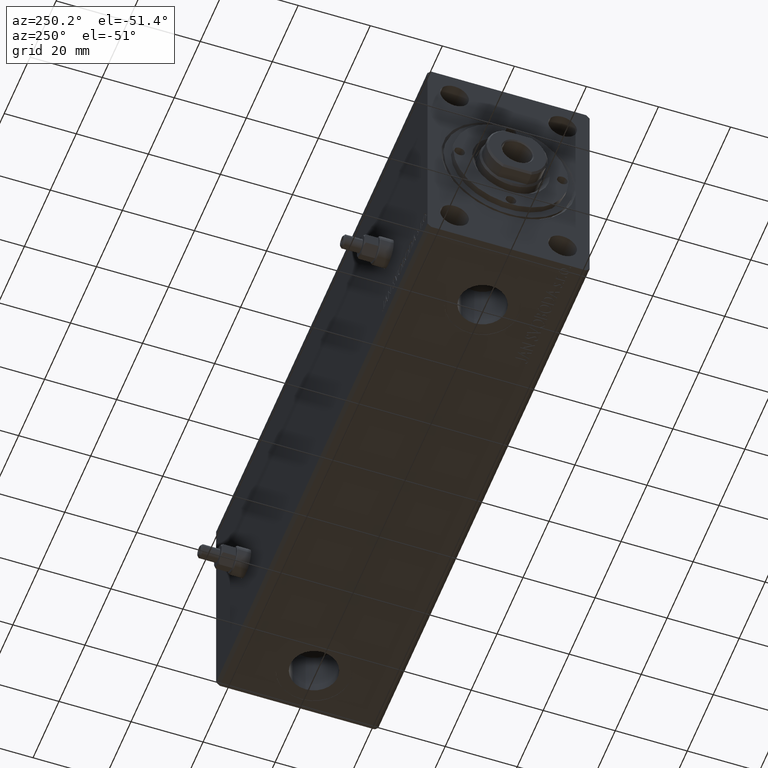
[diagram: clean part render]
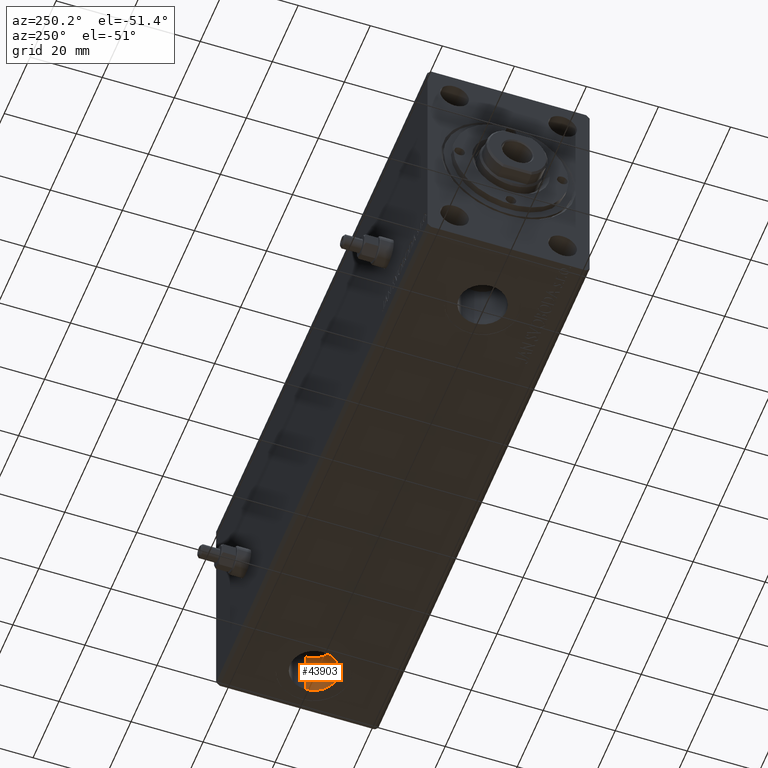
[diagram: same view with one face highlighted and labeled with its STEP entity id]
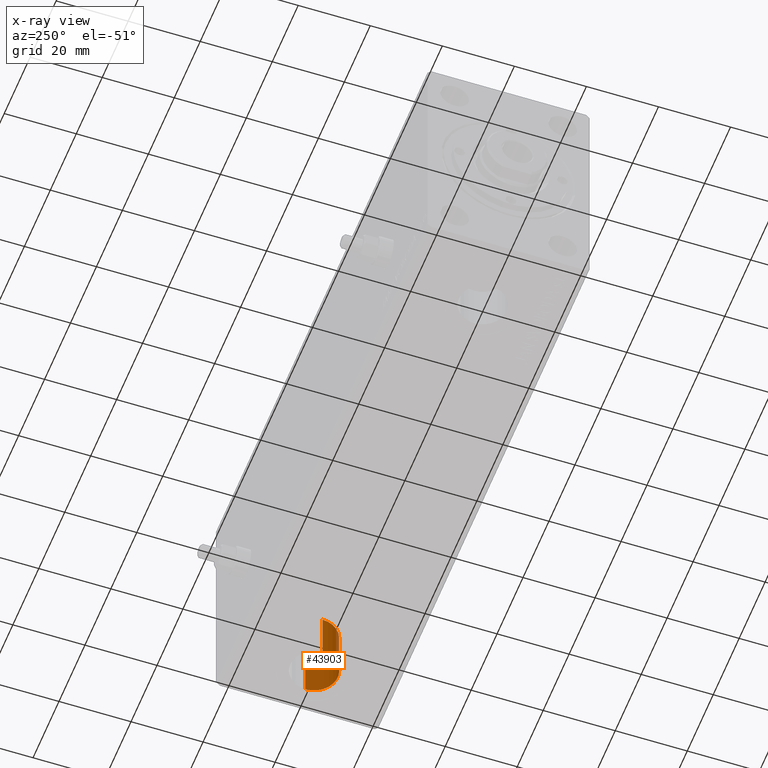
[diagram: x-ray of the same camera — body ghosted, the highlighted face saturated]
A machine part, auxiliary view. The second image highlights one B-rep face of the part: STEP entity #43903.
The next image is the same camera in x-ray: the body ghosted, the highlighted face saturated — about 0% of this face is hidden behind the body in this view.
In plain terms, the highlighted cylindrical surface (edge-blend (fillet) strip) has radius 6.58 mm, axis along (-0, -0, -1).
Its self-contained STEP definition (entity closure, byte-faithful):
#5 = CYLINDRICAL_SURFACE ( 'NONE', #6435, 6.580000000000002736 ) ;
#223 = DIRECTION ( 'NONE',  ( -1.000000000000000000, 0.000000000000000000, 0.000000000000000000 ) ) ;
#3881 = CARTESIAN_POINT ( 'NONE',  ( 149.9999999999999716, -1.210272192541958409E-14, -18.79999999999999716 ) ) ;
#3891 = EDGE_LOOP ( 'NONE', ( #23591, #31458, #15072, #39107 ) ) ;
#5956 = CARTESIAN_POINT ( 'NONE',  ( 143.4199999999999591, -1.210272192541958409E-14, -18.79999999999999716 ) ) ;
#6435 = AXIS2_PLACEMENT_3D ( 'NONE', #3881, #35188, #223 ) ;
#7509 = VERTEX_POINT ( 'NONE', #17961 ) ;
#9421 = CARTESIAN_POINT ( 'NONE',  ( 149.9999999999999716, -1.210272192541958409E-14, -32.39999999999999858 ) ) ;
#9777 = VERTEX_POINT ( 'NONE', #24965 ) ;
#10027 = AXIS2_PLACEMENT_3D ( 'NONE', #9421, #33402, #29757 ) ;
#10816 = CARTESIAN_POINT ( 'NONE',  ( 156.5799999999999557, -1.129690433158062347E-14, -18.79999999999999716 ) ) ;
#11538 = VERTEX_POINT ( 'NONE', #29040 ) ;
#13762 = EDGE_CURVE ( 'NONE', #11538, #9777, #31169, .T. ) ;
#15072 = ORIENTED_EDGE ( 'NONE', *, *, #36651, .T. ) ;
#15457 = VECTOR ( 'NONE', #30635, 1000.000000000000000 ) ;
#15992 = VECTOR ( 'NONE', #35237, 1000.000000000000000 ) ;
#16033 = CARTESIAN_POINT ( 'NONE',  ( 149.9999999999999716, -1.210272192541958409E-14, -18.79999999999999716 ) ) ;
#16767 = EDGE_CURVE ( 'NONE', #11538, #39231, #35017, .T. ) ;
#17961 = CARTESIAN_POINT ( 'NONE',  ( 143.4199999999999591, -1.210272192541958409E-14, -32.39999999999999858 ) ) ;
#19908 = LINE ( 'NONE', #5956, #15457 ) ;
#23424 = EDGE_CURVE ( 'NONE', #9777, #7509, #19908, .T. ) ;
#23591 = ORIENTED_EDGE ( 'NONE', *, *, #13762, .F. ) ;
#24965 = CARTESIAN_POINT ( 'NONE',  ( 143.4199999999999591, -1.210272192541958409E-14, -18.79999999999999716 ) ) ;
#26328 = DIRECTION ( 'NONE',  ( 0.000000000000000000, 0.000000000000000000, -1.000000000000000000 ) ) ;
#27907 = FACE_OUTER_BOUND ( 'NONE', #3891, .T. ) ;
#29040 = CARTESIAN_POINT ( 'NONE',  ( 156.5799999999999557, -1.129690433158062189E-14, -18.79999999999999716 ) ) ;
#29757 = DIRECTION ( 'NONE',  ( -1.000000000000000000, 0.000000000000000000, 0.000000000000000000 ) ) ;
#29940 = CARTESIAN_POINT ( 'NONE',  ( 156.5799999999999557, -1.129690433158062189E-14, -32.39999999999999858 ) ) ;
#30635 = DIRECTION ( 'NONE',  ( -0.000000000000000000, -0.000000000000000000, -1.000000000000000000 ) ) ;
#31169 = CIRCLE ( 'NONE', #42862, 6.580000000000002736 ) ;
#31458 = ORIENTED_EDGE ( 'NONE', *, *, #16767, .T. ) ;
#33402 = DIRECTION ( 'NONE',  ( 0.000000000000000000, 0.000000000000000000, -1.000000000000000000 ) ) ;
#35017 = LINE ( 'NONE', #10816, #15992 ) ;
#35188 = DIRECTION ( 'NONE',  ( -0.000000000000000000, -0.000000000000000000, -1.000000000000000000 ) ) ;
#35237 = DIRECTION ( 'NONE',  ( -0.000000000000000000, -0.000000000000000000, -1.000000000000000000 ) ) ;
#36651 = EDGE_CURVE ( 'NONE', #39231, #7509, #43573, .T. ) ;
#39107 = ORIENTED_EDGE ( 'NONE', *, *, #23424, .F. ) ;
#39231 = VERTEX_POINT ( 'NONE', #29940 ) ;
#40688 = DIRECTION ( 'NONE',  ( -1.000000000000000000, 0.000000000000000000, 0.000000000000000000 ) ) ;
#42862 = AXIS2_PLACEMENT_3D ( 'NONE', #16033, #26328, #40688 ) ;
#43573 = CIRCLE ( 'NONE', #10027, 6.580000000000002736 ) ;
#43903 = ADVANCED_FACE ( 'NONE', ( #27907 ), #5, .F. ) ;